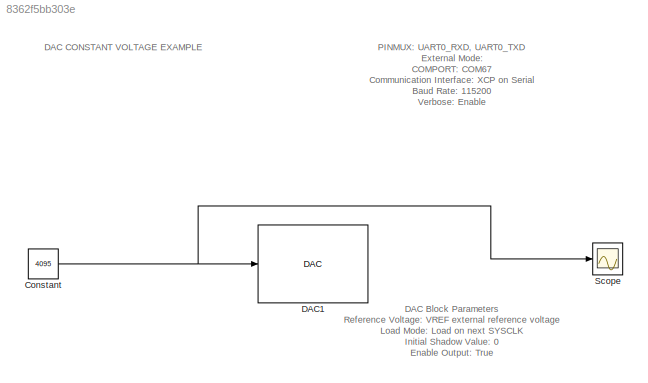
MODEL slx_8362f5bb303e
KIND model
CONFIG AbsTol = auto
CONFIG EnableMultiTasking = off
CONFIG FixedStep = auto
CONFIG MaxStep = auto
CONFIG MinStep = auto
CONFIG RelTol = 1e-3
CONFIG SampleTimeConstraint = Unconstrained
CONFIG SolverName = FixedStepAuto
CONFIG StartTime = 0.0
CONFIG StopTime = inf
BLOCK [Constant] Constant
  Value = 4095
BLOCK [Reference] DAC1  REF=peripheral_library_blocks_am263x/DAC
  SourceBlock = peripheral_library_blocks_am263x/DAC
  SourceType = DAC_AM263X
BLOCK [Scope] Scope
  Floating = off
  NumInputPorts = 1
  ScopeSpecificationString = Simulink.scopes.TimeScopeBlockCfg('CurrentConfiguration', extmgr.ConfigurationSet(extmgr.Configuration('Core','General UI',true),extmgr.Configuration('Core','Source UI',true),extmgr.Configuration('Sources','WiredSimulink',true),extmgr.Configuration('Visuals','Time Domain',true,'SerializedDisplays',{struct('MinYLimReal','3095.00000','MaxYLimReal','5095.00000','YLabelReal','','MinYLimMag','3095.0000...<+1511ch>
ANNOTATION (root): DAC Block Parameters Reference Voltage: VREF external reference voltage Load Mode: Load on next SYSCLK Initial Shadow Value: 0 Enable Output: True
ANNOTATION (root): DAC CONSTANT VOLTAGE EXAMPLE
ANNOTATION (root): PINMUX: UART0_RXD, UART0_TXD External Mode: COMPORT: COM67 Communication Interface: XCP on Serial Baud Rate: 115200 Verbose: Enable
NET Constant:1 -> DAC1:1, Scope:1
note: NET lines group one-source signal fan-out (src -> all destinations, sorted); 1:1 wires keep LINE
